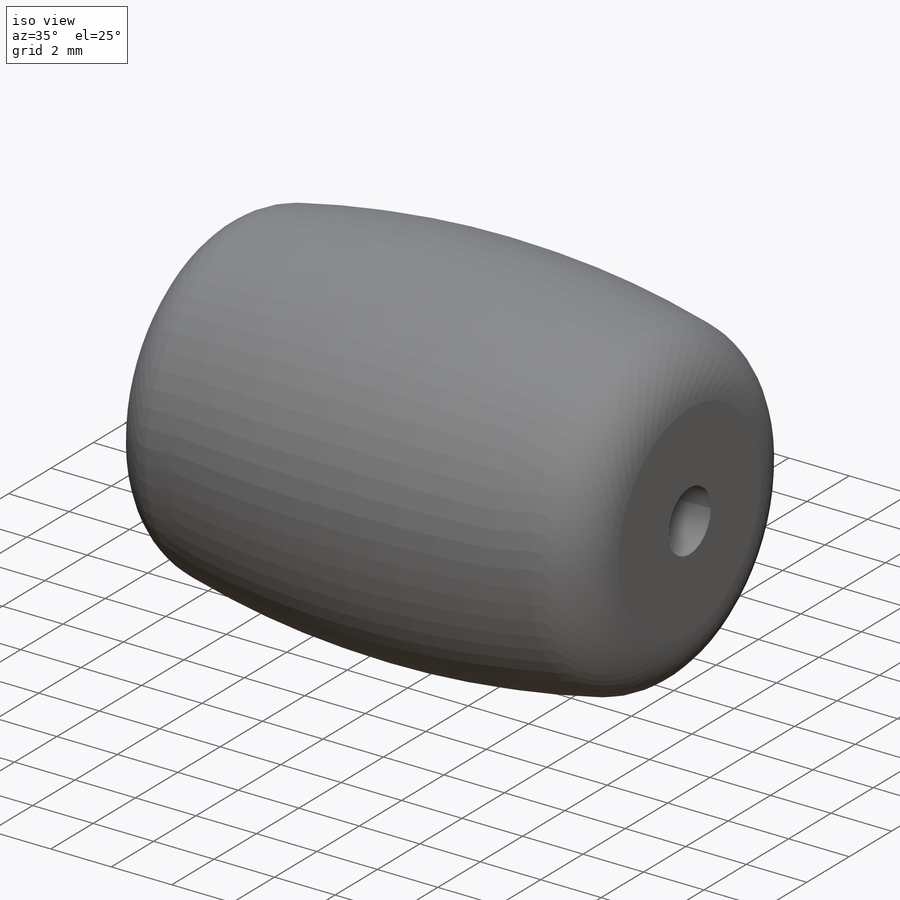
[diagram: iso view]
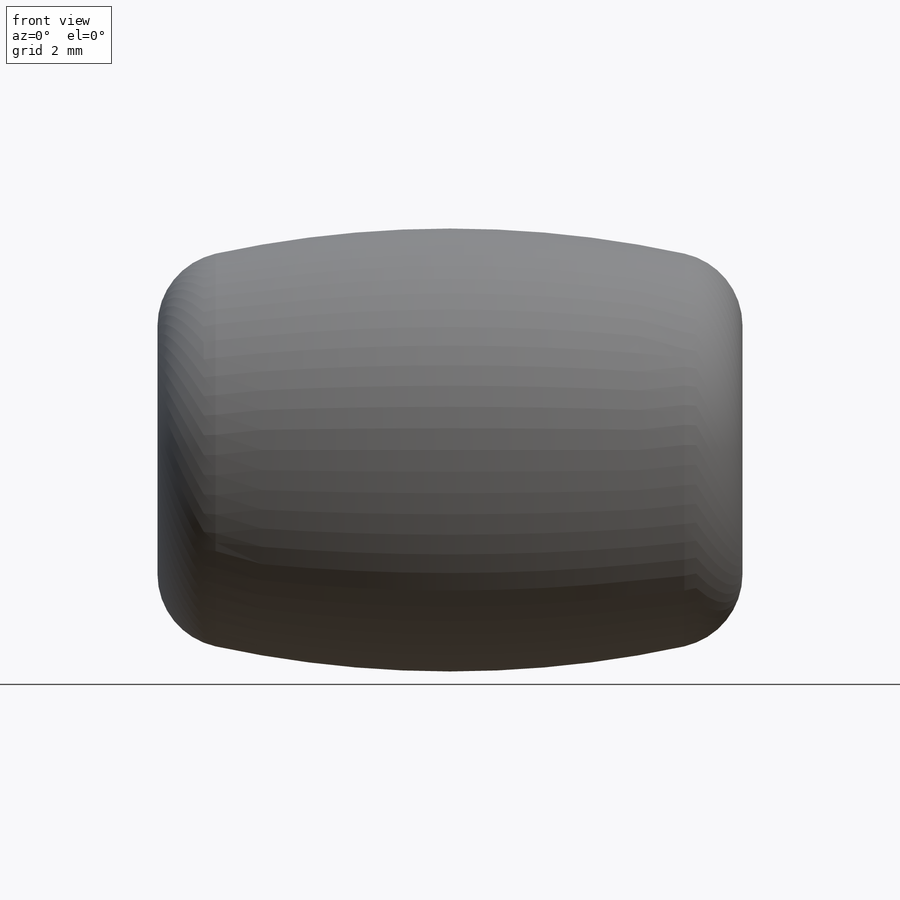
[diagram: front view]
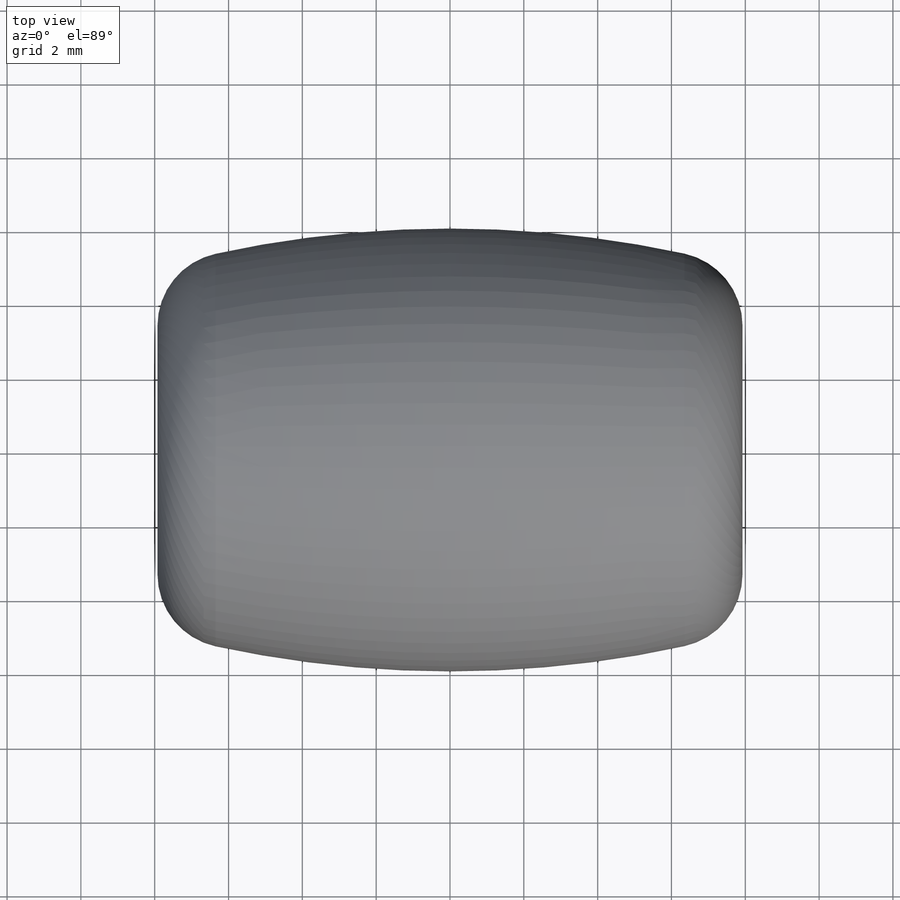
[diagram: top view]
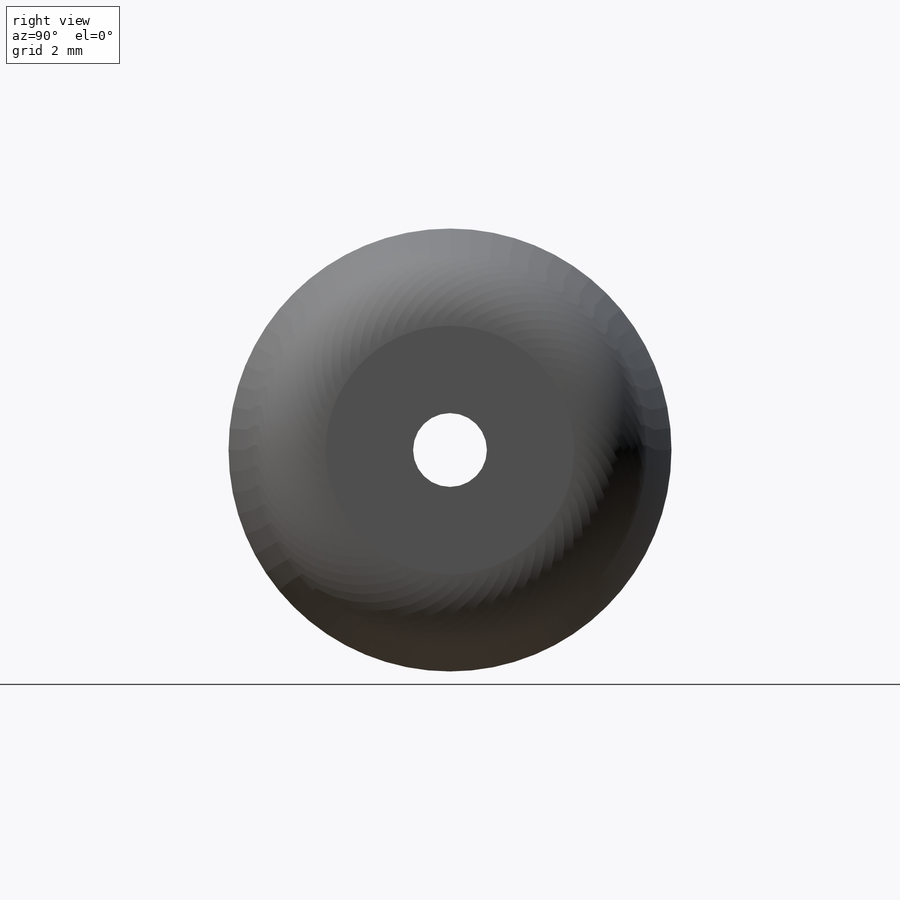
[diagram: right view]
SOLIDWORKS PART (.sldprt)
format: sldprt  version: not decoded by parser v0  size: 185,856 bytes
history: native  units: mm
features: plane x4, sketch x3, fillet x2, material x1, revolve x1, hole x1 (+10 scaffold rows collapsed)
feature tree (22):
  scaffold x10  (default folders/planes/origin — collapsed)
  material  "Materiale <non specificato>"
  plane  "Piano frontale"
  plane  "Piano superiore"
  plane  "Piano destro"
  plane  "Piano1"
  sketch  "Schizzo1"
  revolve  "Rivoluzione1"  Angle=360deg
  fillet  "Raccordo1"  Radius=2mm
  fillet  "Raccordo2"  Radius=2mm
  hole  "Foro Ø0.2 (0.2)-1"  Diameter=2mm Depth=15.85mm
  sketch  "Schizzo3"
  sketch  "Schizzo2"  dims[hole-wizard template sketch: 60 standard entries collapsed; hole parameters kept: c18.Thru Hole Depth=15.85mm]
decode coverage: 5 of 7 modeling features carry decoded parameters
note: ~ marks probable driven/reference dimensions
note: suppression state not decoded; provenance and decode notes live in map.json
